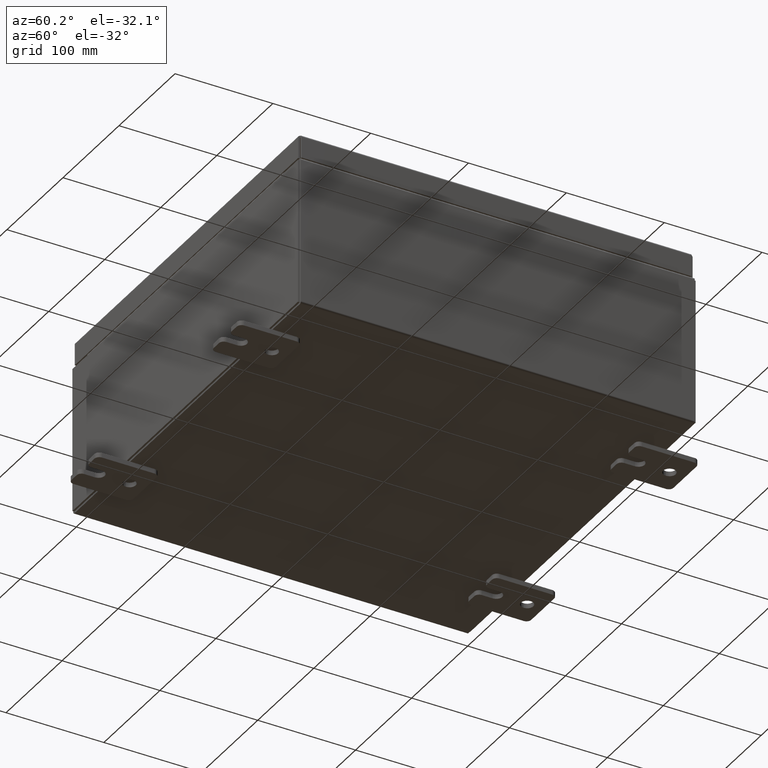
[diagram: clean part render]
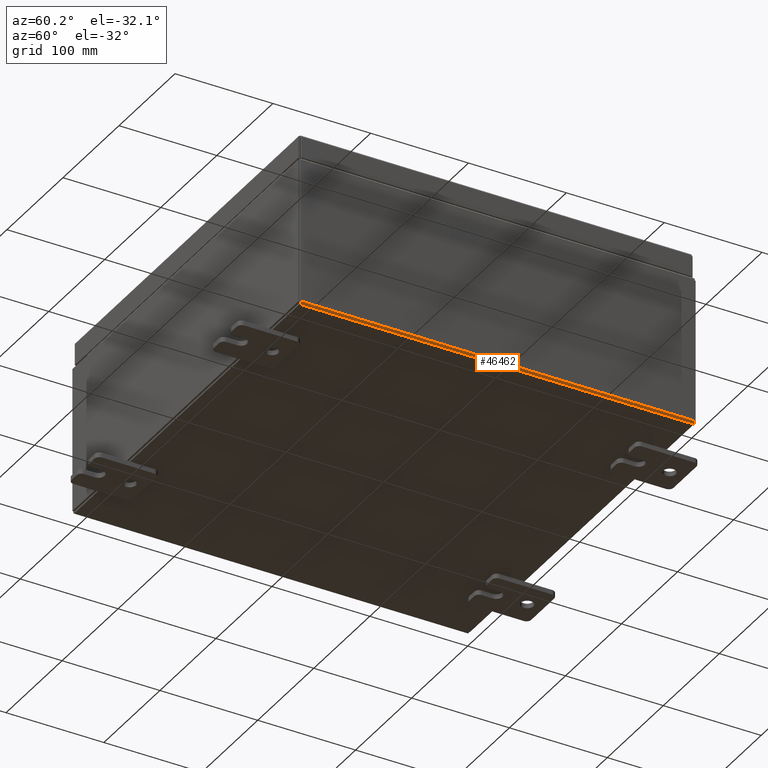
[diagram: same view with one face highlighted and labeled with its STEP entity id]
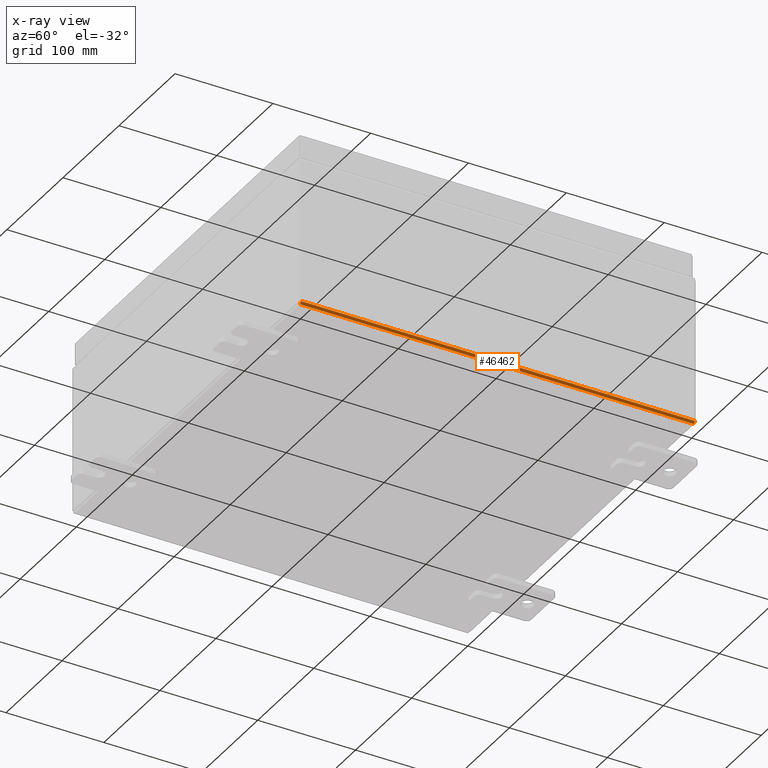
[diagram: x-ray of the same camera — body ghosted, the highlighted face saturated]
A machine part, auxiliary view. The second image highlights one B-rep face of the part: STEP entity #46462.
The next image is the same camera in x-ray: the body ghosted, the highlighted face saturated — about 0% of this face is hidden behind the body in this view.
In plain terms, the highlighted cylindrical surface (edge-blend (fillet) strip) has radius 2.2276 mm, axis along (0, 1, 0).
Its self-contained STEP definition (entity closure, byte-faithful):
#595 = CARTESIAN_POINT ( 'NONE',  ( 7.912299999999998300, -7.925300000000000900, -0.07470000000000000300 ) ) ;
#1878 = ORIENTED_EDGE ( 'NONE', *, *, #24847, .T. ) ;
#9255 = AXIS2_PLACEMENT_3D ( 'NONE', #19835, #53599, #24688 ) ;
#12418 = CARTESIAN_POINT ( 'NONE',  ( 7.999999999999999100, -7.925300000000000000, 0.01299999999999984500 ) ) ;
#13821 = AXIS2_PLACEMENT_3D ( 'NONE', #29616, #34487, #58452 ) ;
#18171 = AXIS2_PLACEMENT_3D ( 'NONE', #26265, #59943, #31120 ) ;
#19835 = CARTESIAN_POINT ( 'NONE',  ( 7.912299999999998300, -7.925300000000000000, 0.01300000000000015200 ) ) ;
#22490 = DIRECTION ( 'NONE',  ( -0.0000000000000000000, -1.000000000000000000, -0.0000000000000000000 ) ) ;
#22749 = FACE_OUTER_BOUND ( 'NONE', #50553, .T. ) ;
#22824 = CARTESIAN_POINT ( 'NONE',  ( 7.912299999999998300, 7.925300000000000000, -0.07469999999999994700 ) ) ;
#22854 = CIRCLE ( 'NONE', #9255, 0.08770000000000009700 ) ;
#24688 = DIRECTION ( 'NONE',  ( 0.0000000000000000000, 0.0000000000000000000, 1.000000000000000000 ) ) ;
#24847 = EDGE_CURVE ( 'NONE', #61694, #57492, #53935, .T. ) ;
#26265 = CARTESIAN_POINT ( 'NONE',  ( 7.912299999999998300, 7.925300000000000000, 0.01300000000000015200 ) ) ;
#26791 = CIRCLE ( 'NONE', #18171, 0.08770000000000009700 ) ;
#29616 = CARTESIAN_POINT ( 'NONE',  ( 7.912299999999998300, 7.925300000000000000, 0.01300000000000015200 ) ) ;
#31120 = DIRECTION ( 'NONE',  ( 0.0000000000000000000, 0.0000000000000000000, 1.000000000000000000 ) ) ;
#34487 = DIRECTION ( 'NONE',  ( 0.0000000000000000000, 1.000000000000000000, 0.0000000000000000000 ) ) ;
#34782 = EDGE_CURVE ( 'NONE', #48933, #57492, #22854, .T. ) ;
#36889 = DIRECTION ( 'NONE',  ( -0.0000000000000000000, -1.000000000000000000, -0.0000000000000000000 ) ) ;
#40528 = EDGE_CURVE ( 'NONE', #41164, #48933, #57215, .T. ) ;
#41164 = VERTEX_POINT ( 'NONE', #22824 ) ;
#41755 = CARTESIAN_POINT ( 'NONE',  ( 7.912299999999998300, 7.925300000000000000, -0.07469999999999994700 ) ) ;
#42979 = VECTOR ( 'NONE', #36889, 39.37007874015748100 ) ;
#46462 = ADVANCED_FACE ( 'NONE', ( #22749 ), #46945, .T. ) ;
#46945 = CYLINDRICAL_SURFACE ( 'NONE', #13821, 0.08770000000000026400 ) ;
#48933 = VERTEX_POINT ( 'NONE', #595 ) ;
#49698 = ORIENTED_EDGE ( 'NONE', *, *, #40528, .F. ) ;
#50048 = ORIENTED_EDGE ( 'NONE', *, *, #56900, .F. ) ;
#50553 = EDGE_LOOP ( 'NONE', ( #49698, #50048, #1878, #58605 ) ) ;
#51123 = CARTESIAN_POINT ( 'NONE',  ( 7.999999999999999100, 7.925300000000000000, 0.01299999999999984700 ) ) ;
#51469 = CARTESIAN_POINT ( 'NONE',  ( 7.999999999999999100, -7.925300000000000000, 0.01299999999999984700 ) ) ;
#53599 = DIRECTION ( 'NONE',  ( -0.0000000000000000000, -1.000000000000000000, -0.0000000000000000000 ) ) ;
#53935 = LINE ( 'NONE', #51469, #55428 ) ;
#55428 = VECTOR ( 'NONE', #22490, 39.37007874015748100 ) ;
#56900 = EDGE_CURVE ( 'NONE', #61694, #41164, #26791, .T. ) ;
#57215 = LINE ( 'NONE', #41755, #42979 ) ;
#57492 = VERTEX_POINT ( 'NONE', #12418 ) ;
#58452 = DIRECTION ( 'NONE',  ( 1.000000000000000000, 0.0000000000000000000, -3.504366012397134600E-015 ) ) ;
#58605 = ORIENTED_EDGE ( 'NONE', *, *, #34782, .F. ) ;
#59943 = DIRECTION ( 'NONE',  ( 0.0000000000000000000, 1.000000000000000000, 0.0000000000000000000 ) ) ;
#61694 = VERTEX_POINT ( 'NONE', #51123 ) ;